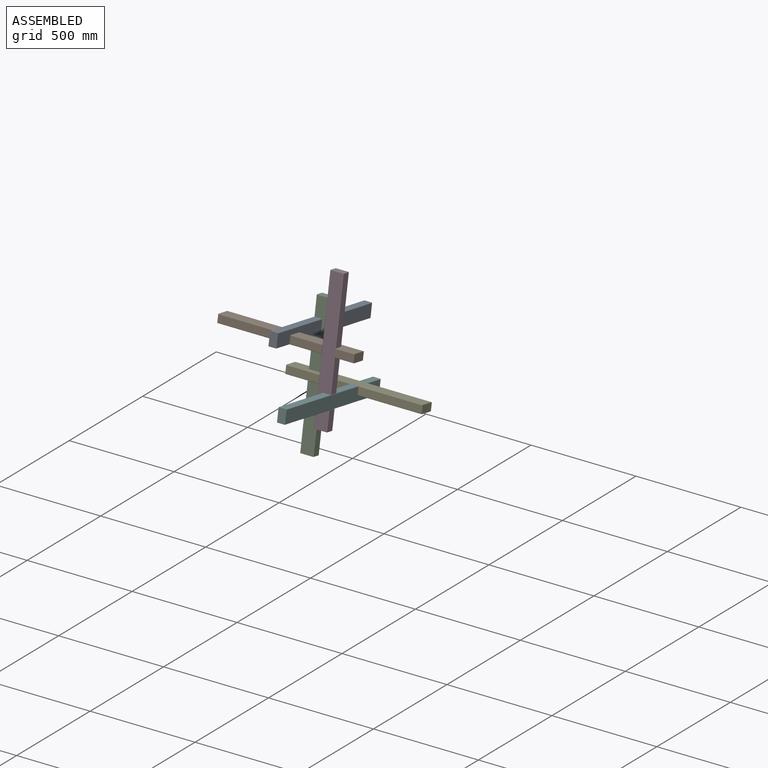
[diagram: assembled view]
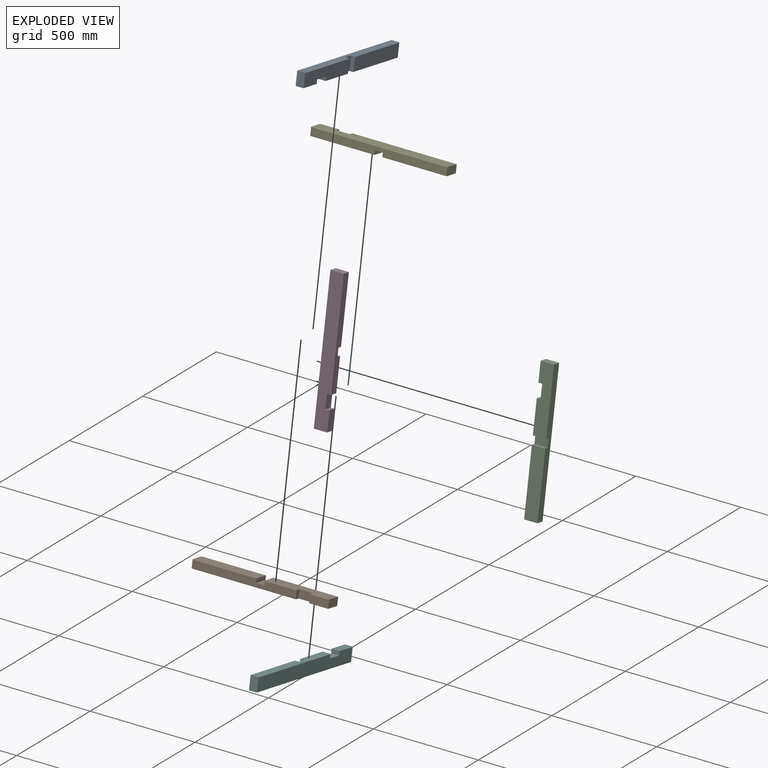
[diagram: exploded view]
GUIDED TOUR — MATED ASSEMBLY (Onshape document 6ba8a873bfe83aa5a7ed7a3e, AutoMate assembly 6ba8a873bfe83aa5a7ed7a3e_16875f0aae81fa5e9099c382_1ca957c6ce56bbce31ee2d36_default)

This assembly has 6 components, labeled P0..P5 below (a component is one placed occurrence of a part; the same part can appear more than once), held together by 5 mates. A mate is a constraint between two components; its type names the relative motion it leaves free:
  FASTENED — locks the two components together rigidly (no relative motion).
Axis/direction vectors are unit vectors and 'through' points are millimeter coordinates, both in the assembly's world frame.

MATES
  1. FASTENED "Fastened 2": P4 <-> P2, direction (0.000, 0.985, -0.174) through (-619.31, 5.65, 441.34) mm
  2. FASTENED "Fastened 5": P1 <-> P0, direction (0.000, 0.174, 0.985) through (-632.01, -161.32, 664.15) mm
  3. FASTENED "Fastened 4": P1 <-> P3, direction (0.000, -0.985, 0.174) through (-428.88, -173.83, 666.35) mm
  4. FASTENED "Fastened 1": P0 <-> P2, direction (1.000, 0.000, 0.000) through (-632.01, 40.92, 641.38) mm
  5. FASTENED "Fastened 3": P4 <-> P5, direction (0.000, -0.174, -0.985) through (-416.18, -6.86, 443.55) mm

ASSEMBLY ORDER
  1. P3 — the base component [order verified]
  2. P5 [order verified]
  3. P4 [order verified]
  4. P2 [order verified]
  5. P1 [order verified]
  6. P0 [order verified]
Order-tag legend:
  [order verified] — this step's position reverses a verified removal order: the component was checked to insert without passing through the ones already placed.

Of the 6 components, 0 carry the full construction recipe — the FeatureScript program that regenerates the part's solid from scratch; the rest are supplied as boundary geometry only.
Each toured component is shown spotlighted twice — in the assembled view, then in the exploded view, where a leader line traces a displaced component back to its assembled socket (saturated green if recipe-attached, orange if geometry-only; every other component desaturated gray) — followed by its recipe or geometry summary and the mates that hold it.
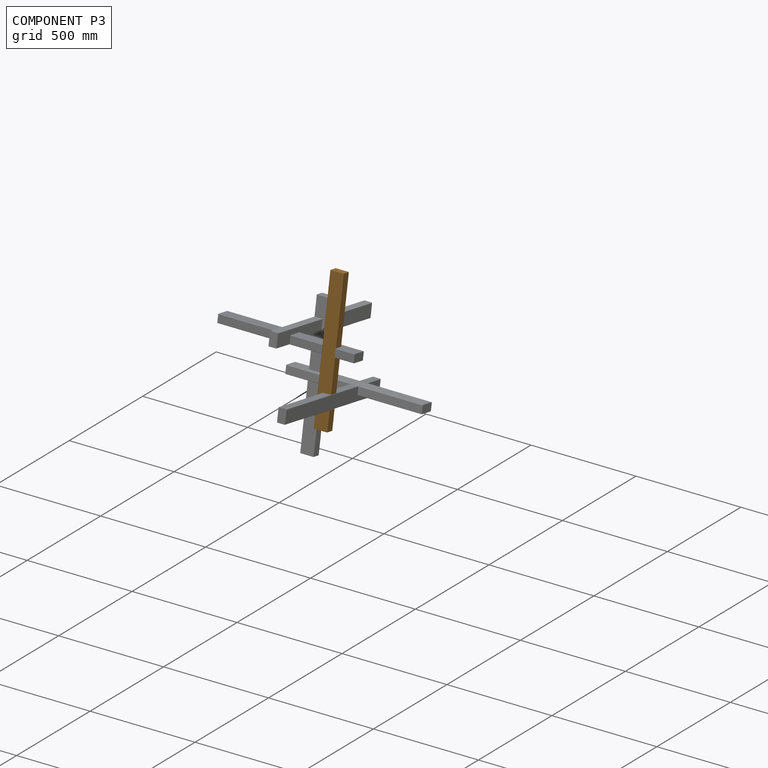
[diagram: component P3 — assembled]
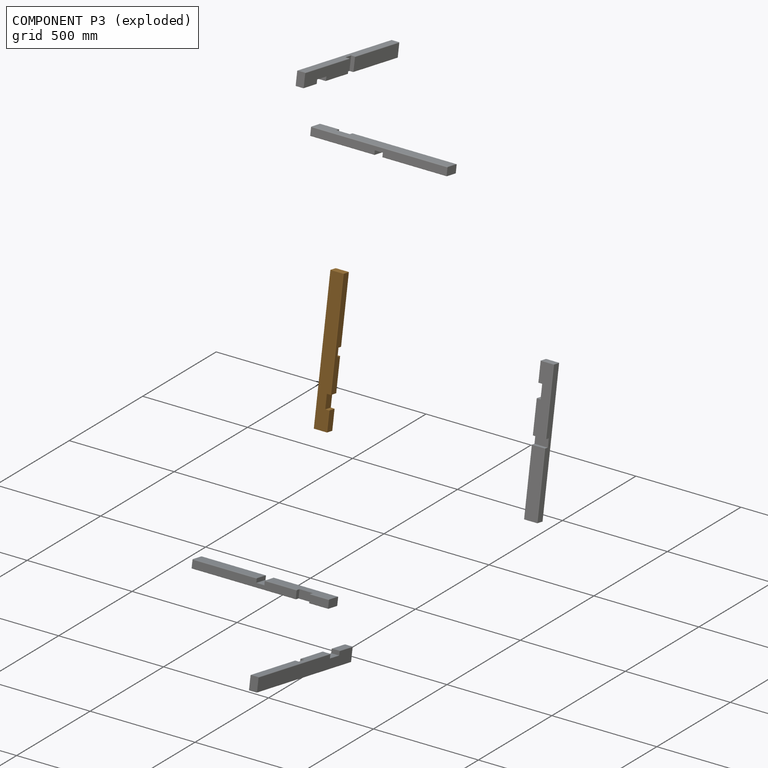
[diagram: component P3 — exploded]
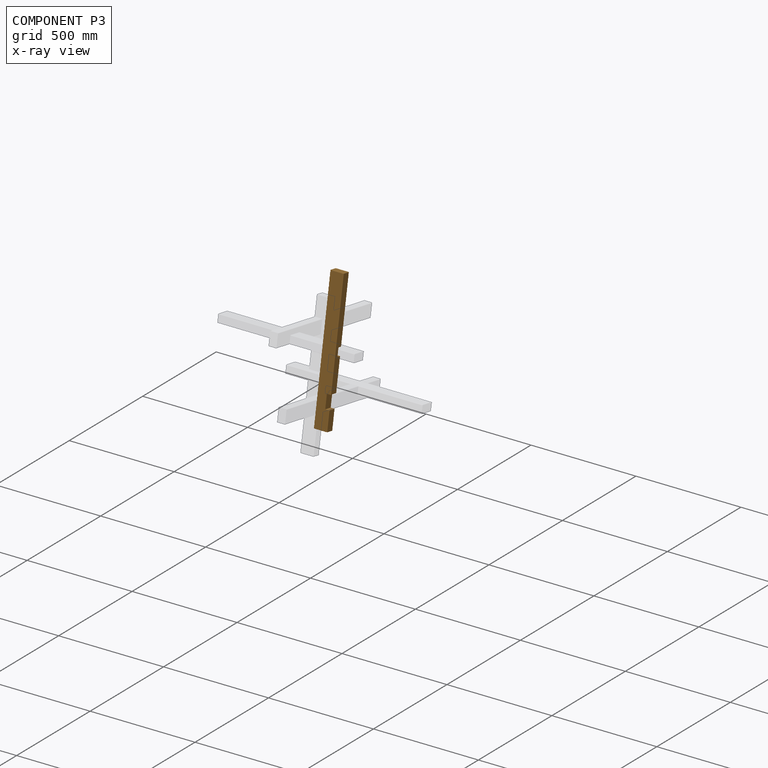
[diagram: component P3 — x-ray view]
COMPONENT P3 — geometry summary (no construction recipe available for this part):
  bounding box: 650.0 x 63.5 x 38.1 mm
  B-rep topology: 1 solid, 22 faces, 120 edges
  volume: 1478162 mm^3 (94% of its bounding box)
Held by: FASTENED mate "Fastened 4" to P1.
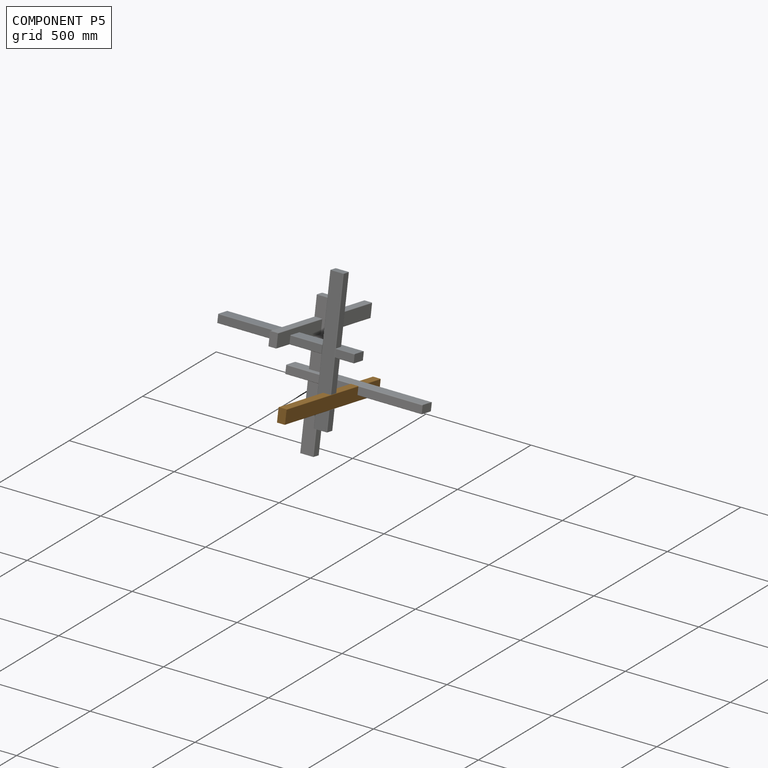
[diagram: component P5 — assembled]
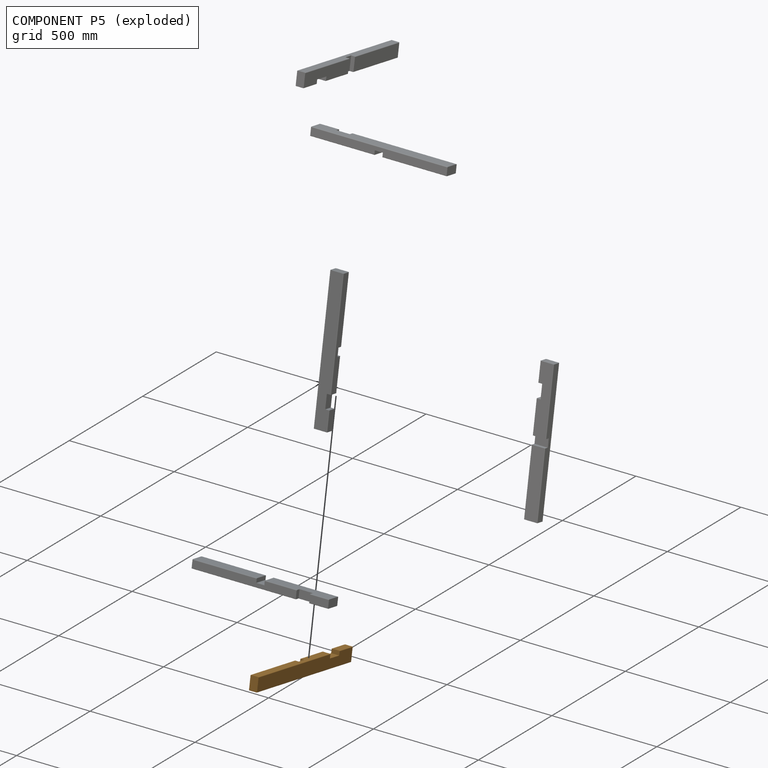
[diagram: component P5 — exploded]
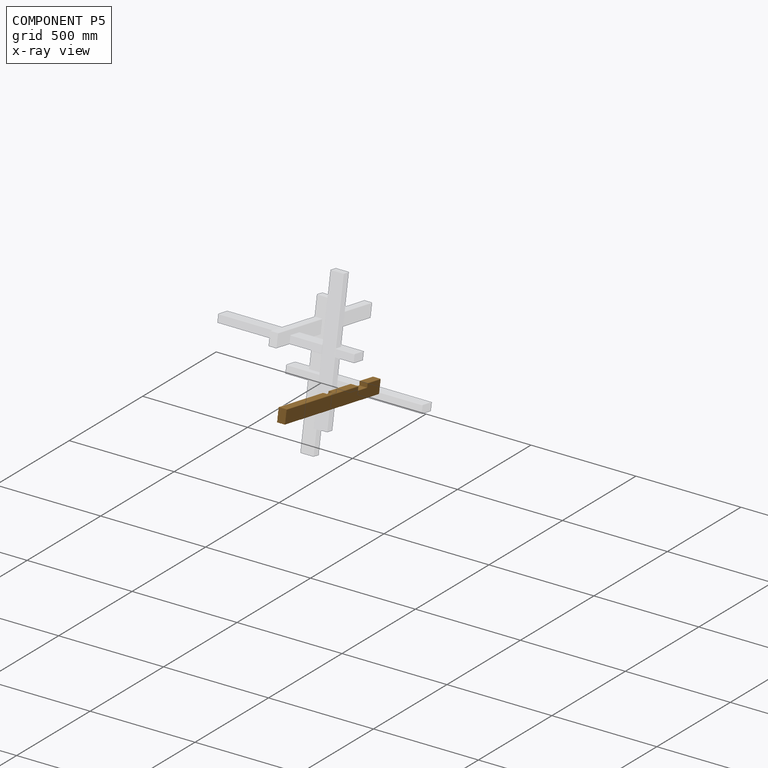
[diagram: component P5 — x-ray view]
COMPONENT P5 — geometry summary (no construction recipe available for this part):
  bounding box: 650.0 x 63.5 x 38.1 mm
  B-rep topology: 1 solid, 22 faces, 120 edges
  volume: 1478162 mm^3 (94% of its bounding box)
Held by: FASTENED mate "Fastened 3" to P4.
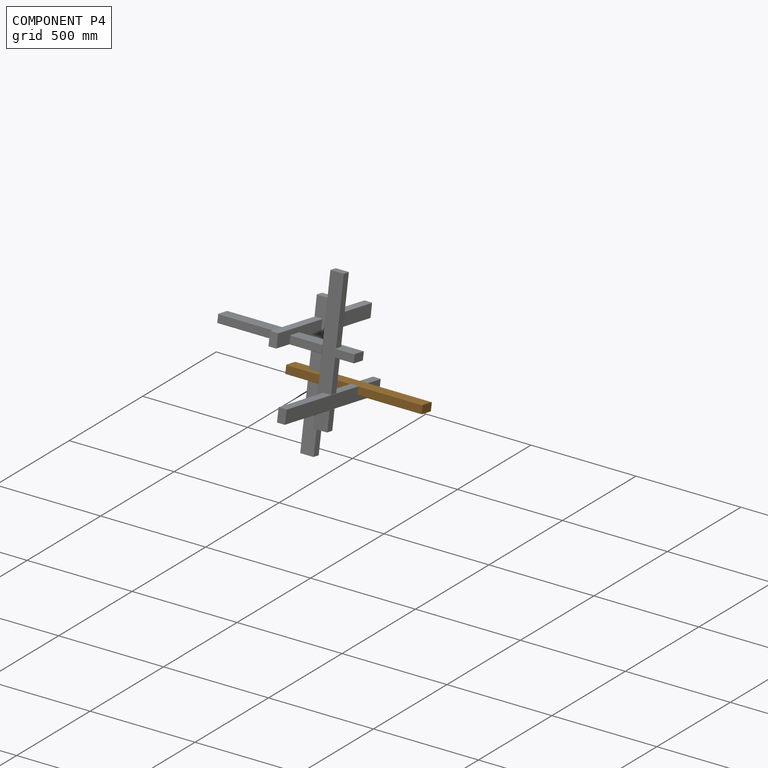
[diagram: component P4 — assembled]
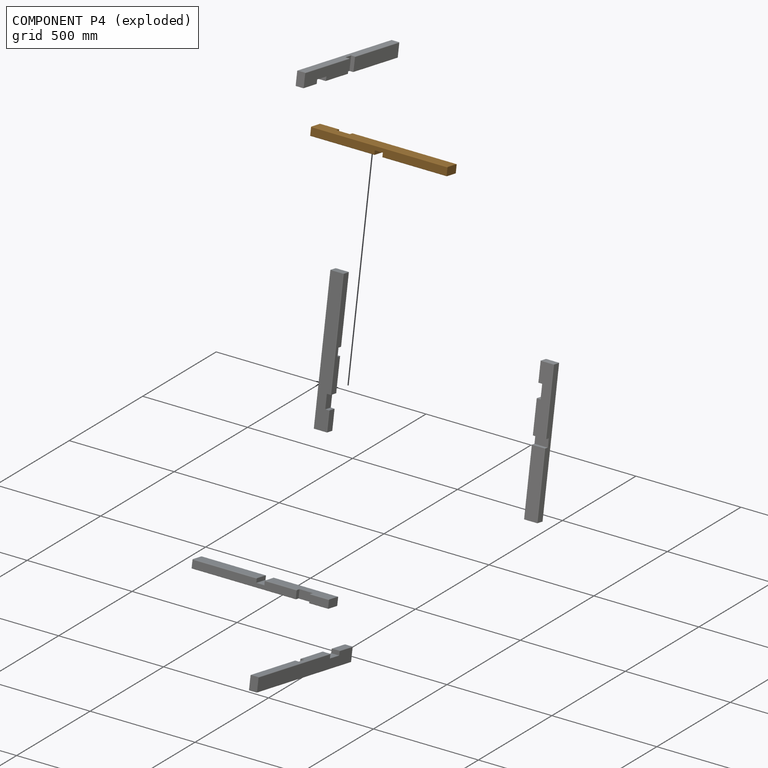
[diagram: component P4 — exploded]
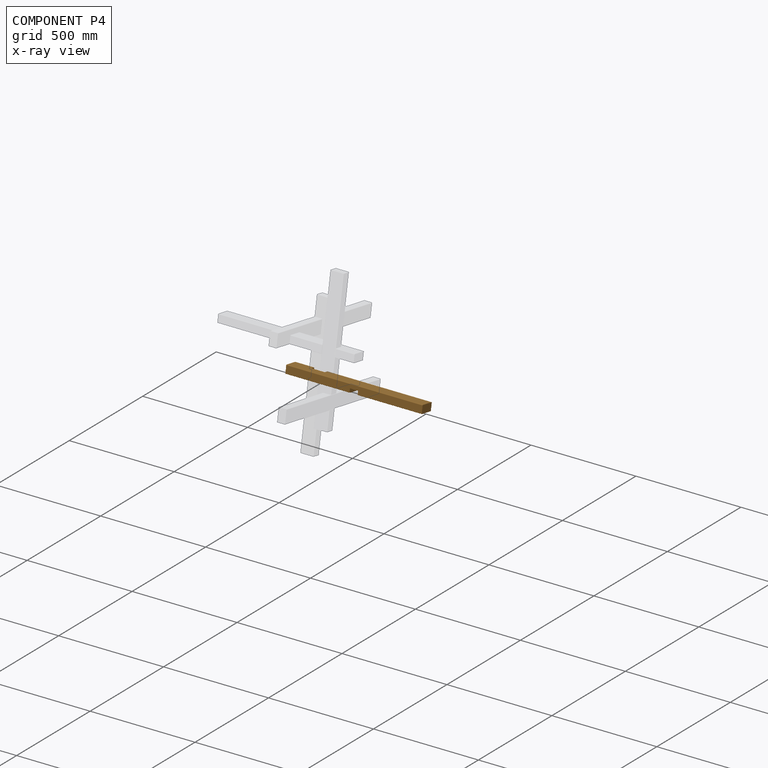
[diagram: component P4 — x-ray view]
COMPONENT P4 — geometry summary (no construction recipe available for this part):
  bounding box: 650.0 x 63.5 x 38.1 mm
  B-rep topology: 1 solid, 22 faces, 120 edges
  volume: 1478162 mm^3 (94% of its bounding box)
Held by: FASTENED mate "Fastened 2" to P2; FASTENED mate "Fastened 3" to P5.
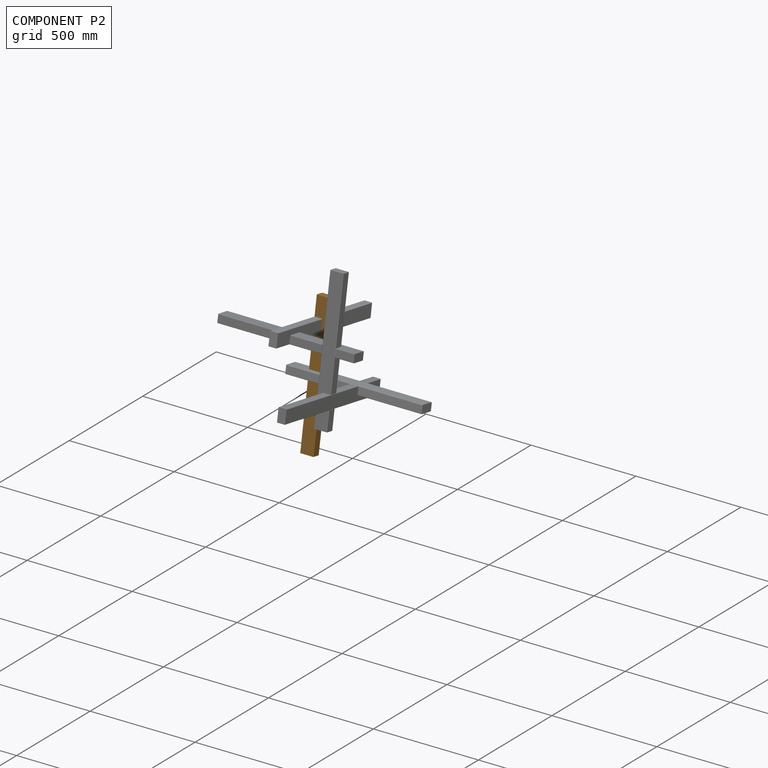
[diagram: component P2 — assembled]
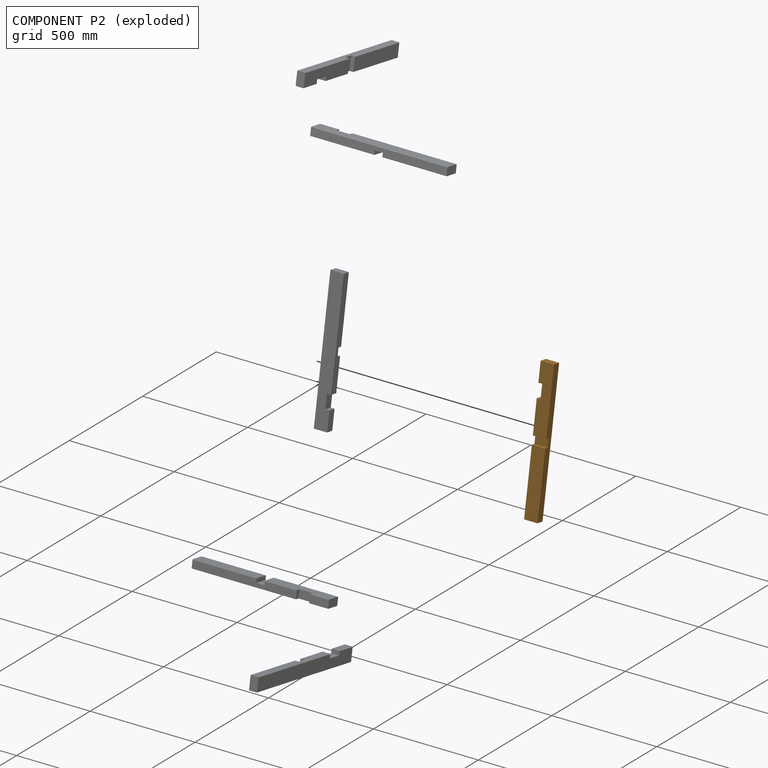
[diagram: component P2 — exploded]
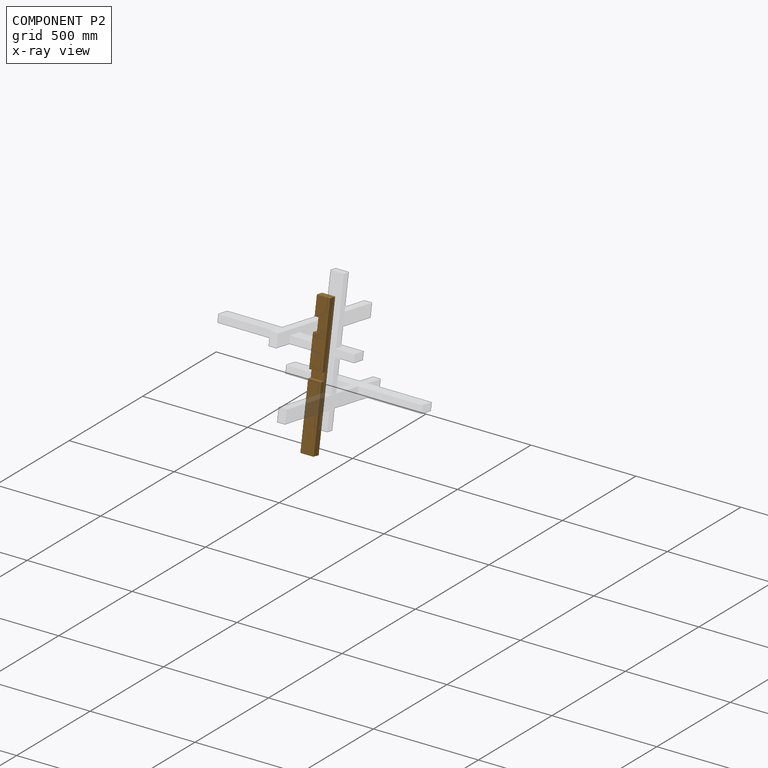
[diagram: component P2 — x-ray view]
COMPONENT P2 — geometry summary (no construction recipe available for this part):
  bounding box: 650.0 x 63.5 x 38.1 mm
  B-rep topology: 1 solid, 22 faces, 120 edges
  volume: 1478162 mm^3 (94% of its bounding box)
Held by: FASTENED mate "Fastened 2" to P4; FASTENED mate "Fastened 1" to P0.
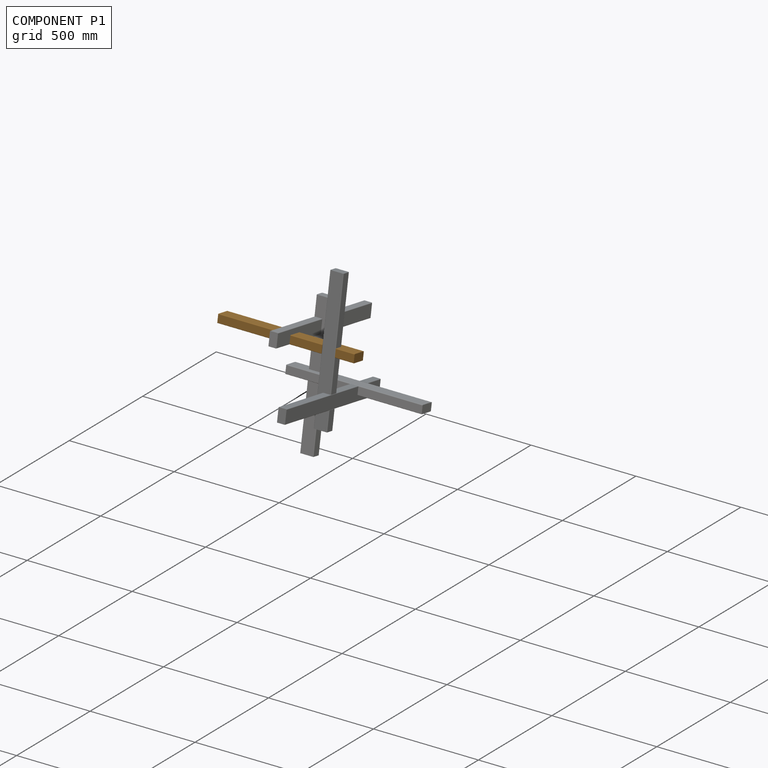
[diagram: component P1 — assembled]
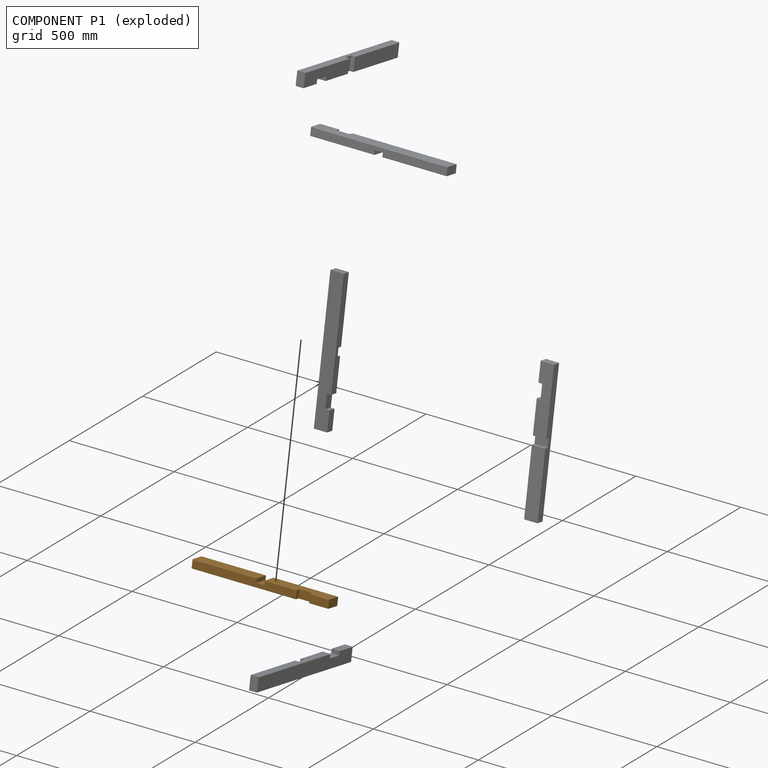
[diagram: component P1 — exploded]
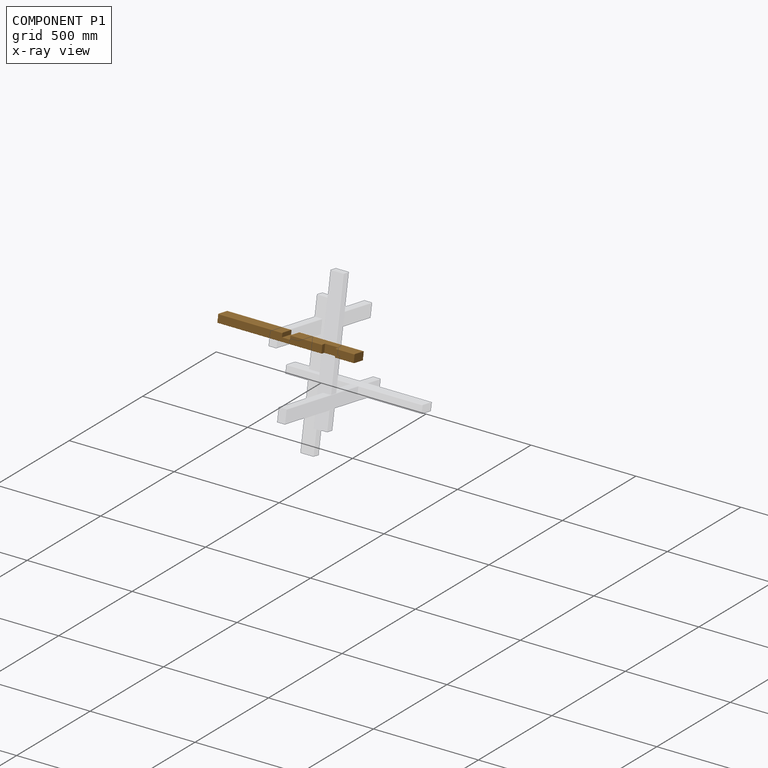
[diagram: component P1 — x-ray view]
COMPONENT P1 — geometry summary (no construction recipe available for this part):
  bounding box: 650.0 x 63.5 x 38.1 mm
  B-rep topology: 1 solid, 22 faces, 120 edges
  volume: 1478162 mm^3 (94% of its bounding box)
Held by: FASTENED mate "Fastened 5" to P0; FASTENED mate "Fastened 4" to P3.
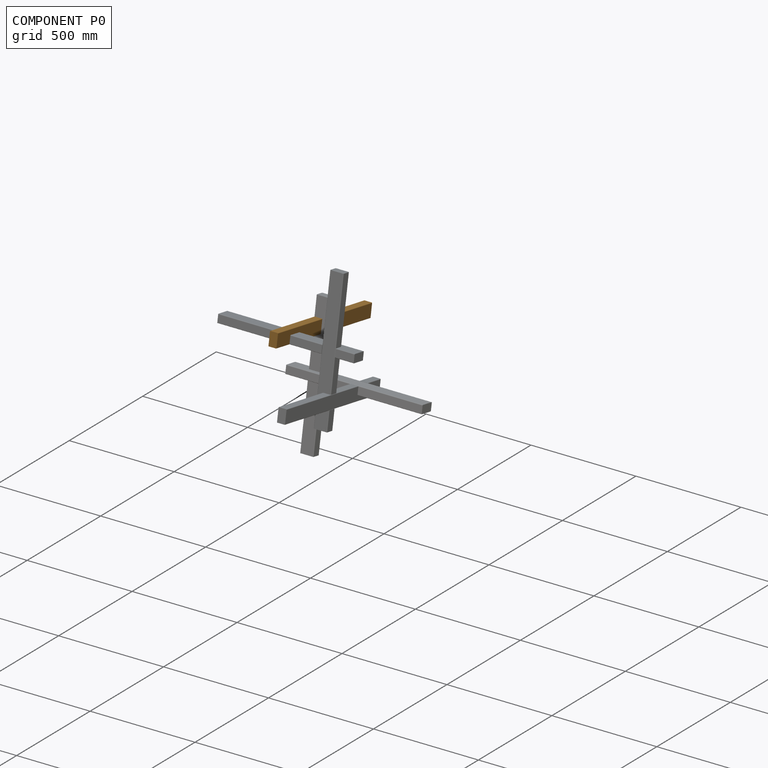
[diagram: component P0 — assembled]
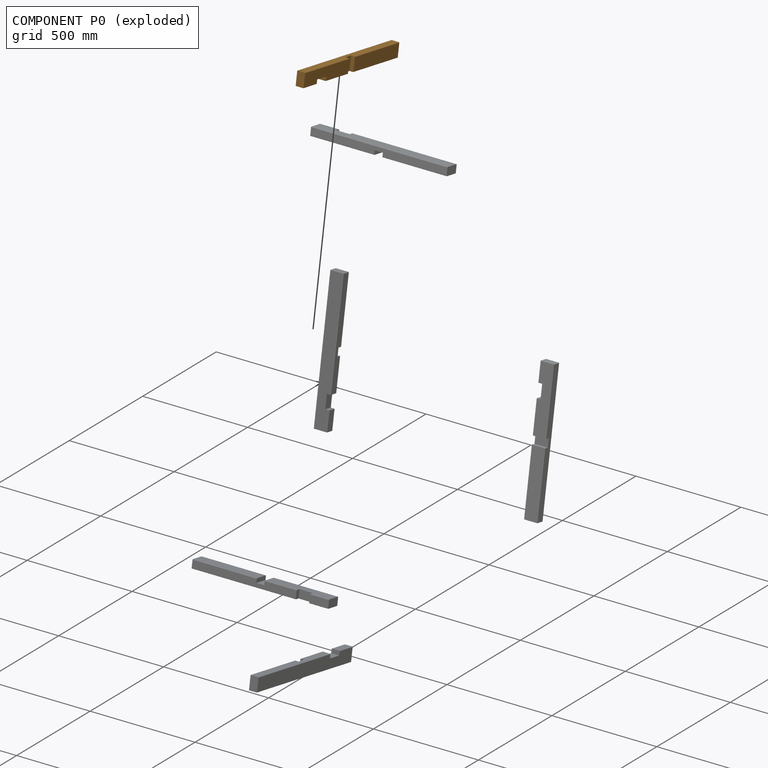
[diagram: component P0 — exploded]
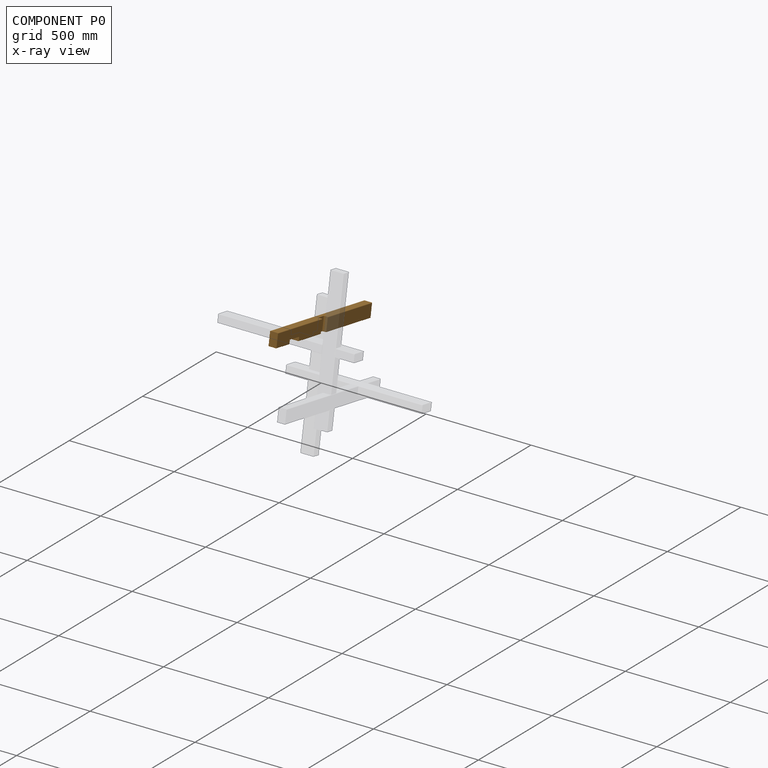
[diagram: component P0 — x-ray view]
COMPONENT P0 — geometry summary (no construction recipe available for this part):
  bounding box: 650.0 x 63.5 x 38.1 mm
  B-rep topology: 1 solid, 22 faces, 120 edges
  volume: 1478162 mm^3 (94% of its bounding box)
Held by: FASTENED mate "Fastened 5" to P1; FASTENED mate "Fastened 1" to P2.
PROVENANCE & LICENSES
Assembly (occurrences, transforms, mates, per-part STEP geometry): AutoMate dataset, Zenodo record 7776208, CC0.
Construction recipes: CADFS (HuggingFace VladPyatov/CADFS, CC-BY-4.0, layered over the ABC dataset), FeatureScript reconstruction programs keyed by ABC model id.
Join: ABC meta listings map ABC model id -> Onshape documentId; within a shared document, parts are matched by geometric signature (bounding-box dims + volume at 0.1% relative tolerance, exact B-rep face/solid counts).
Verification: no recipe attachments in this assembly (6 components, all geometry-only).
Renders: orthographic iso camera (az 35 / el 25); the floor grid conveys scale (grid pitch printed in each image; no ruler). In the exploded view each component is displaced by its stored offset vector: the offsets alone carry the explosion direction (mate normal/axis signs are not orientation cues and do not encode it), and separation distances are assigned per mate-chain, not proportionally to assembly-order depth.
